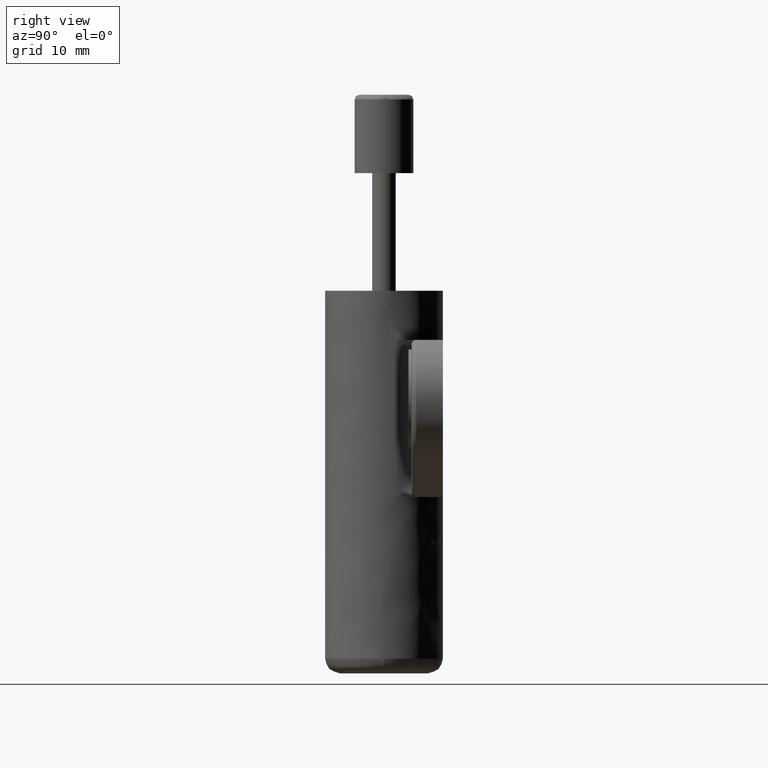
[diagram: clean part render]
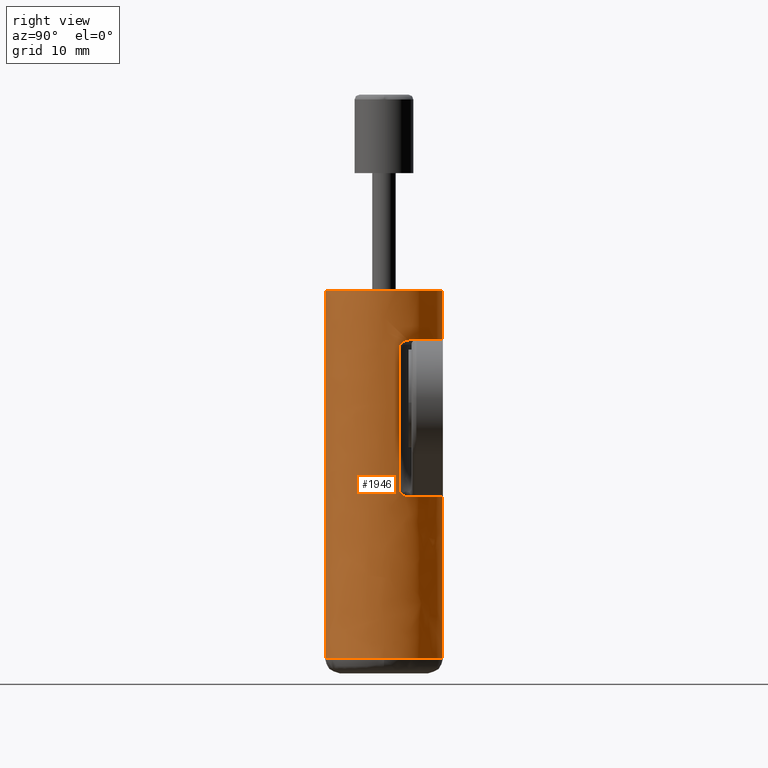
[diagram: same view with one face highlighted and labeled with its STEP entity id]
A machine part, right view. The second image highlights one B-rep face of the part: STEP entity #1946.
In plain terms, the highlighted face is a freeform B-spline surface patch.
Its self-contained STEP definition (entity closure, byte-faithful):
#1245=CARTESIAN_POINT('',(5.999999999999999,-4.425539E-016,-37.500000000071772));
#1246=VERTEX_POINT('',#1245);
#1276=CARTESIAN_POINT('',(0.052359213018487,5.999771538384781,-37.500000000071772));
#1277=VERTEX_POINT('',#1276);
#1293=CARTESIAN_POINT('',(5.999999999999999,-4.425539E-016,-37.500000000071772));
#1294=CARTESIAN_POINT('',(5.999999999999999,5.947867263541870,-37.500000000071758));
#1295=CARTESIAN_POINT('',(0.052359213018487,5.999771538384781,-37.500000000071765));
#1303=(BOUNDED_CURVE()B_SPLINE_CURVE(2,(#1293,#1294,#1295),.UNSPECIFIED.,.F.,.U.)B_SPLINE_CURVE_WITH_KNOTS((3,3),(0.0,0.248460105664184),.UNSPECIFIED.)CURVE()GEOMETRIC_REPRESENTATION_ITEM()RATIONAL_B_SPLINE_CURVE((1.0,0.708910879621147,0.996414028098487))REPRESENTATION_ITEM(''));
#1304=EDGE_CURVE('',#1246,#1277,#1303,.T.);
#1339=CARTESIAN_POINT('',(-0.052359213018486,-5.999771538384780,-37.500000000071758));
#1340=VERTEX_POINT('',#1339);
#1341=CARTESIAN_POINT('',(-0.052359213018485,-5.999771538384780,-37.500000000071779));
#1342=CARTESIAN_POINT('',(-0.026180104938331,-5.999999999999999,-37.500000000071758));
#1343=CARTESIAN_POINT('',(0.0,-6.0,-37.500000000071772));
#1344=CARTESIAN_POINT('',(5.999999999999999,-6.0,-37.500000000071765));
#1345=CARTESIAN_POINT('',(5.999999999999999,-4.425539E-016,-37.500000000071772));
#1353=(BOUNDED_CURVE()B_SPLINE_CURVE(2,(#1341,#1342,#1343,#1344,#1345),.UNSPECIFIED.,.F.,.U.)B_SPLINE_CURVE_WITH_KNOTS((3,2,3),(0.748460105664184,0.750000000000000,1.0),.UNSPECIFIED.)CURVE()GEOMETRIC_REPRESENTATION_ITEM()RATIONAL_B_SPLINE_CURVE((0.996414028098487,0.998195901565401,1.0,0.707106781186548,1.0))REPRESENTATION_ITEM(''));
#1354=EDGE_CURVE('',#1340,#1246,#1353,.T.);
#1379=CARTESIAN_POINT('',(0.052359213025104,5.999771538384723,1.221245E-015));
#1380=VERTEX_POINT('',#1379);
#1381=CARTESIAN_POINT('',(6.0,0.0,0.0));
#1382=VERTEX_POINT('',#1381);
#1383=CARTESIAN_POINT('',(0.052359213025103,5.999771538384723,0.0));
#1384=CARTESIAN_POINT('',(6.0,5.947867263535310,0.0));
#1385=CARTESIAN_POINT('',(6.0,0.0,0.0));
#1393=(BOUNDED_CURVE()B_SPLINE_CURVE(2,(#1383,#1384,#1385),.UNSPECIFIED.,.F.,.U.)B_SPLINE_CURVE_WITH_KNOTS((3,3),(0.751539894336011,1.0),.UNSPECIFIED.)CURVE()GEOMETRIC_REPRESENTATION_ITEM()RATIONAL_B_SPLINE_CURVE((0.996414028098037,0.708910879621374,1.0))REPRESENTATION_ITEM(''));
#1394=EDGE_CURVE('',#1380,#1382,#1393,.T.);
#1413=CARTESIAN_POINT('',(-0.052359213025104,-5.999771538384723,1.221245E-015));
#1414=VERTEX_POINT('',#1413);
#1428=CARTESIAN_POINT('',(6.0,0.0,0.0));
#1429=CARTESIAN_POINT('',(6.0,-6.0,0.0));
#1430=CARTESIAN_POINT('',(0.0,-6.0,0.0));
#1431=CARTESIAN_POINT('',(-0.026180104941640,-6.0,0.0));
#1432=CARTESIAN_POINT('',(-0.052359213025103,-5.999771538384723,0.0));
#1440=(BOUNDED_CURVE()B_SPLINE_CURVE(2,(#1428,#1429,#1430,#1431,#1432),.UNSPECIFIED.,.F.,.U.)B_SPLINE_CURVE_WITH_KNOTS((3,2,3),(0.0,0.250000000000000,0.251539894336010),.UNSPECIFIED.)CURVE()GEOMETRIC_REPRESENTATION_ITEM()RATIONAL_B_SPLINE_CURVE((1.0,0.707106781186548,1.0,0.998195901565173,0.996414028098037))REPRESENTATION_ITEM(''));
#1441=EDGE_CURVE('',#1382,#1414,#1440,.T.);
#1834=CARTESIAN_POINT('',(0.052359212990247,5.999771538385026,0.937500000001795));
#1835=CARTESIAN_POINT('',(6.052130751375273,5.947412325394780,0.937500000001795));
#1836=CARTESIAN_POINT('',(5.999771538385026,-0.052359212990247,0.937500000001795));
#1837=CARTESIAN_POINT('',(5.947412325394780,-6.052130751375273,0.937500000001795));
#1838=CARTESIAN_POINT('',(-0.052359212990247,-5.999771538385026,0.937500000001795));
#1839=CARTESIAN_POINT('',(0.052359212990247,5.999771538385026,-38.460937500073612));
#1840=CARTESIAN_POINT('',(6.052130751375273,5.947412325394780,-38.460937500073605));
#1841=CARTESIAN_POINT('',(5.999771538385026,-0.052359212990247,-38.460937500073612));
#1842=CARTESIAN_POINT('',(5.947412325394780,-6.052130751375273,-38.460937500073605));
#1843=CARTESIAN_POINT('',(-0.052359212990247,-5.999771538385026,-38.460937500073612));
#1851=(BOUNDED_SURFACE()B_SPLINE_SURFACE(2,1,((#1834,#1839),(#1835,#1840),(#1836,#1841),(#1837,#1842),(#1838,#1843)),.UNSPECIFIED.,.F.,.F.,.U.)B_SPLINE_SURFACE_WITH_KNOTS((3,2,3),(2,2),(0.0,9.941125496954278,19.882250993908560),(0.0,39.398437500075417),.UNSPECIFIED.)GEOMETRIC_REPRESENTATION_ITEM()RATIONAL_B_SPLINE_SURFACE(((1.0,1.0),(0.707106781186548,0.707106781186548),(1.0,1.0),(0.707106781186548,0.707106781186548),(1.0,1.0)))REPRESENTATION_ITEM('')SURFACE());
#1852=CARTESIAN_POINT('',(5.446780982598560,2.516461191356430,-5.0));
#1853=VERTEX_POINT('',#1852);
#1854=CARTESIAN_POINT('',(0.052359213008033,5.999771538384872,-5.000000000000003));
#1855=VERTEX_POINT('',#1854);
#1856=CARTESIAN_POINT('',(5.446780982598560,2.516461191356430,-5.0));
#1857=CARTESIAN_POINT('',(3.852783558646608,5.966605737560434,-5.0));
#1858=CARTESIAN_POINT('',(0.052359213008033,5.999771538384872,-4.999999999999999));
#1866=(BOUNDED_CURVE()B_SPLINE_CURVE(2,(#1856,#1857,#1858),.UNSPECIFIED.,.F.,.U.)B_SPLINE_CURVE_WITH_KNOTS((3,3),(0.0,0.991911897846532),.UNSPECIFIED.)CURVE()GEOMETRIC_REPRESENTATION_ITEM()RATIONAL_B_SPLINE_CURVE((1.0,0.843714329396197,0.997471891062067))REPRESENTATION_ITEM(''));
#1867=EDGE_CURVE('',#1853,#1855,#1866,.T.);
#1868=ORIENTED_EDGE('',*,*,#1867,.T.);
#1869=CARTESIAN_POINT('',(0.052359213025104,5.999771538384723,1.221245E-015));
#1870=CARTESIAN_POINT('',(0.052359213008033,5.999771538384872,-5.000000000000003));
#1871=QUASI_UNIFORM_CURVE('',1,(#1869,#1870),.UNSPECIFIED.,.F.,.U.);
#1872=EDGE_CURVE('',#1380,#1855,#1871,.T.);
#1873=ORIENTED_EDGE('',*,*,#1872,.F.);
#1874=ORIENTED_EDGE('',*,*,#1394,.T.);
#1875=ORIENTED_EDGE('',*,*,#1441,.T.);
#1876=CARTESIAN_POINT('',(-0.052359213025104,-5.999771538384723,1.221245E-015));
#1877=CARTESIAN_POINT('',(-0.052359213018486,-5.999771538384780,-37.500000000071758));
#1878=QUASI_UNIFORM_CURVE('',1,(#1876,#1877),.UNSPECIFIED.,.F.,.U.);
#1879=EDGE_CURVE('',#1414,#1340,#1878,.T.);
#1880=ORIENTED_EDGE('',*,*,#1879,.T.);
#1881=ORIENTED_EDGE('',*,*,#1354,.T.);
#1882=ORIENTED_EDGE('',*,*,#1304,.T.);
#1883=CARTESIAN_POINT('',(0.052359213020156,5.999771538384766,-21.024768977517500));
#1884=VERTEX_POINT('',#1883);
#1885=CARTESIAN_POINT('',(0.052359213020156,5.999771538384766,-21.024768977517500));
#1886=CARTESIAN_POINT('',(0.052359213018487,5.999771538384781,-37.500000000071772));
#1887=QUASI_UNIFORM_CURVE('',1,(#1885,#1886),.UNSPECIFIED.,.F.,.U.);
#1888=EDGE_CURVE('',#1884,#1277,#1887,.T.);
#1889=ORIENTED_EDGE('',*,*,#1888,.F.);
#1890=CARTESIAN_POINT('',(5.446780982598560,2.516461191356430,-21.024768977517500));
#1891=VERTEX_POINT('',#1890);
#1892=CARTESIAN_POINT('',(0.052359213020156,5.999771538384766,-21.024768977517500));
#1893=CARTESIAN_POINT('',(3.852783558650168,5.966605737552723,-21.024768977517503));
#1894=CARTESIAN_POINT('',(5.446780982598532,2.516461191356419,-21.024768977517500));
#1902=(BOUNDED_CURVE()B_SPLINE_CURVE(2,(#1892,#1893,#1894),.UNSPECIFIED.,.F.,.U.)B_SPLINE_CURVE_WITH_KNOTS((3,3),(0.008088102155338,1.0),.UNSPECIFIED.)CURVE()GEOMETRIC_REPRESENTATION_ITEM()RATIONAL_B_SPLINE_CURVE((0.997471891061487,0.843714329396492,1.0))REPRESENTATION_ITEM(''));
#1903=EDGE_CURVE('',#1884,#1891,#1902,.T.);
#1904=ORIENTED_EDGE('',*,*,#1903,.T.);
#1905=CARTESIAN_POINT('',(5.798240408670100,1.542857142857225,-20.524768977517549));
#1906=VERTEX_POINT('',#1905);
#1907=CARTESIAN_POINT('',(5.446780982598560,2.516461191356430,-21.024768977517500));
#1908=CARTESIAN_POINT('',(5.467473609941996,2.471672815727453,-21.024768977517500));
#1909=CARTESIAN_POINT('',(5.487322350853529,2.427263218518200,-21.020120974694951));
#1910=CARTESIAN_POINT('',(5.525529310966874,2.338982502669476,-21.003427088960340));
#1911=CARTESIAN_POINT('',(5.543995152169184,2.294839695675095,-20.991254191386869));
#1912=CARTESIAN_POINT('',(5.596457498853710,2.165259653715980,-20.946199792103869));
#1913=CARTESIAN_POINT('',(5.627498224645418,2.082903276730555,-20.905264630743009));
#1914=CARTESIAN_POINT('',(5.684233543819389,1.922683371728345,-20.810535292792238));
#1915=CARTESIAN_POINT('',(5.709909161948999,1.844798451638750,-20.756525679980559));
#1916=CARTESIAN_POINT('',(5.756867262744068,1.692578885613146,-20.643417190261211));
#1917=CARTESIAN_POINT('',(5.778295293898220,1.617813253318441,-20.584009160310359));
#1918=CARTESIAN_POINT('',(5.798240408670100,1.542857142857225,-20.524768977517549));
#1919=B_SPLINE_CURVE_WITH_KNOTS('',3,(#1907,#1908,#1909,#1910,#1911,#1912,#1913,#1914,#1915,#1916,#1917,#1918),.UNSPECIFIED.,.F.,.U.,(4,2,2,2,2,4),(0.0,0.125000000000000,0.250000000000001,0.500000000000000,0.750000000000000,1.0),.UNSPECIFIED.);
#1920=EDGE_CURVE('',#1891,#1906,#1919,.T.);
#1921=ORIENTED_EDGE('',*,*,#1920,.T.);
#1922=CARTESIAN_POINT('',(5.798240408670100,1.542857142857225,-5.500000000000000));
#1923=VERTEX_POINT('',#1922);
#1924=CARTESIAN_POINT('',(5.798240408670100,1.542857142857225,-20.524768977517549));
#1925=CARTESIAN_POINT('',(5.798240408670100,1.542857142857225,-5.500000000000000));
#1926=QUASI_UNIFORM_CURVE('',1,(#1924,#1925),.UNSPECIFIED.,.F.,.U.);
#1927=EDGE_CURVE('',#1906,#1923,#1926,.T.);
#1928=ORIENTED_EDGE('',*,*,#1927,.T.);
#1929=CARTESIAN_POINT('',(5.798240408670100,1.542857142857225,-5.500000000000000));
#1930=CARTESIAN_POINT('',(5.778295293898215,1.617813253318459,-5.440759817207195));
#1931=CARTESIAN_POINT('',(5.756867262744067,1.692578885613146,-5.381351787256341));
#1932=CARTESIAN_POINT('',(5.709909161948998,1.844798451638752,-5.268243297536982));
#1933=CARTESIAN_POINT('',(5.684233543819390,1.922683371728346,-5.214233684725301));
#1934=CARTESIAN_POINT('',(5.627498224645417,2.082903276730560,-5.119504346774544));
#1935=CARTESIAN_POINT('',(5.596457498853710,2.165259653715990,-5.078569185413678));
#1936=CARTESIAN_POINT('',(5.543995152169178,2.294839695675111,-5.033514786130681));
#1937=CARTESIAN_POINT('',(5.525529310966877,2.338982502669475,-5.021341888557213));
#1938=CARTESIAN_POINT('',(5.487322350853527,2.427263218518204,-5.004648002822594));
#1939=CARTESIAN_POINT('',(5.467473609941995,2.471672815727451,-4.999999999999999));
#1940=CARTESIAN_POINT('',(5.446780982598560,2.516461191356430,-5.0));
#1941=B_SPLINE_CURVE_WITH_KNOTS('',3,(#1929,#1930,#1931,#1932,#1933,#1934,#1935,#1936,#1937,#1938,#1939,#1940),.UNSPECIFIED.,.F.,.U.,(4,2,2,2,2,4),(0.0,0.250000000000000,0.500000000000000,0.750000000000000,0.875000000000000,1.0),.UNSPECIFIED.);
#1942=EDGE_CURVE('',#1923,#1853,#1941,.T.);
#1943=ORIENTED_EDGE('',*,*,#1942,.T.);
#1944=EDGE_LOOP('',(#1868,#1873,#1874,#1875,#1880,#1881,#1882,#1889,#1904,#1921,#1928,#1943));
#1945=FACE_OUTER_BOUND('',#1944,.T.);
#1946=ADVANCED_FACE('',(#1945),#1851,.T.);